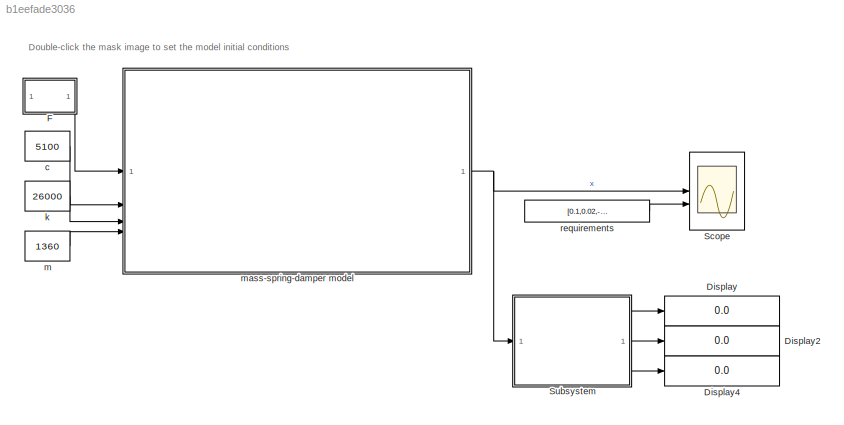
MODEL slx_b1eefade3036
KIND model
CONFIG AbsTol = auto
CONFIG EnableMultiTasking = off
CONFIG FixedStep = auto
CONFIG MaxStep = 1e-5
CONFIG MinStep = auto
CONFIG RelTol = 1e-6
CONFIG SampleTimeConstraint = Unconstrained
CONFIG SolverName = ode23t
CONFIG StartTime = 0.0
CONFIG StopTime = 10
BLOCK [Display] Display
  Decimation = 1
BLOCK [Display] Display2
  Decimation = 1
BLOCK [Display] Display4
  Decimation = 1
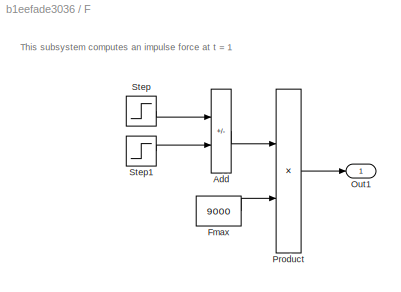
BLOCK [SubSystem] F
BLOCK [Sum] F/Add
  IconShape = rectangular
  Inputs = +-
BLOCK [Constant] F/Fmax
  Value = 9000
BLOCK [Outport] F/Out1
BLOCK [Product] F/Product
BLOCK [Step] F/Step
  SampleTime = 0
BLOCK [Step] F/Step1
  SampleTime = 0
  Time = 1.1
BLOCK [Scope] Scope
  Floating = off
  NumInputPorts = 2
  ScopeSpecificationString = Simulink.scopes.TimeScopeBlockCfg('CurrentConfiguration', extmgr.ConfigurationSet(extmgr.Configuration('Core','General UI',true,'FigureColor',[1 1 1]),extmgr.Configuration('Core','Source UI',true),extmgr.Configuration('Sources','WiredSimulink',true,'DataLoggingVariableName','ScopeData1'),extmgr.Configuration('Visuals','Time Domain',true,'SerializedDisplays',{struct('MinYLimReal','-0.125','MaxYLimR...<+2174ch>
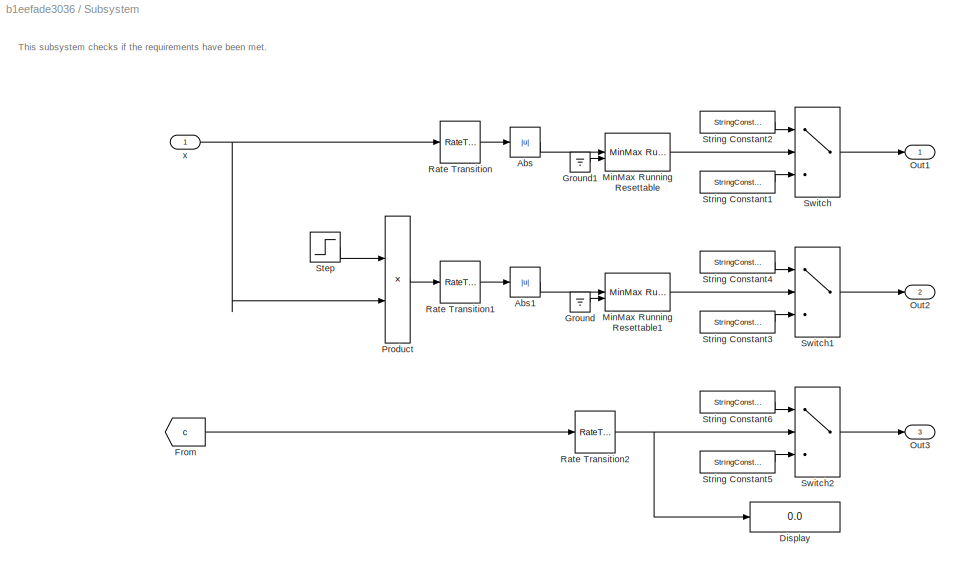
BLOCK [SubSystem] Subsystem
BLOCK [Abs] Subsystem/Abs
  SaturateOnIntegerOverflow = off
BLOCK [Abs] Subsystem/Abs1
  SaturateOnIntegerOverflow = off
BLOCK [Display] Subsystem/Display
  Decimation = 1
BLOCK [From] Subsystem/From
  GotoTag = c
  TagVisibility = global
BLOCK [Ground] Subsystem/Ground
BLOCK [Ground] Subsystem/Ground1
BLOCK [Reference] Subsystem/MinMax Running Resettable  REF=simulink/Math
Operations/MinMax
Running
Resettable
  SourceBlock = simulink/Math\nOperations/MinMax\nRunning\nResettable
  SourceType = MinMax Running Resettable
BLOCK [Reference] Subsystem/MinMax Running Resettable1  REF=simulink/Math
Operations/MinMax
Running
Resettable
  SourceBlock = simulink/Math\nOperations/MinMax\nRunning\nResettable
  SourceType = MinMax Running Resettable
BLOCK [Outport] Subsystem/Out1
BLOCK [Outport] Subsystem/Out2
  Port = 2
BLOCK [Outport] Subsystem/Out3
  Port = 3
BLOCK [Product] Subsystem/Product
BLOCK [RateTransition] Subsystem/Rate Transition
  OutPortSampleTime = 0.01
BLOCK [RateTransition] Subsystem/Rate Transition1
  OutPortSampleTime = 0.01
BLOCK [RateTransition] Subsystem/Rate Transition2
  OutPortSampleTime = 0.01
BLOCK [Step] Subsystem/Step
  SampleTime = 0
  Time = 2
BLOCK [StringConstant] Subsystem/String Constant1
  String = "Req. 1 met"
BLOCK [StringConstant] Subsystem/String Constant2
  String = "Req. 1 not met"
BLOCK [StringConstant] Subsystem/String Constant3
  String = "Req. 2 met"
BLOCK [StringConstant] Subsystem/String Constant4
  String = "Req. 2 not met"
BLOCK [StringConstant] Subsystem/String Constant5
  String = "Req. 3 met"
BLOCK [StringConstant] Subsystem/String Constant6
  String = "Req. 3 not met"
BLOCK [Switch] Subsystem/Switch
  Criteria = u2 > Threshold
  InputSameDT = off
  SaturateOnIntegerOverflow = off
  Threshold = 0.1
BLOCK [Switch] Subsystem/Switch1
  Criteria = u2 > Threshold
  InputSameDT = off
  SaturateOnIntegerOverflow = off
  Threshold = 0.02
BLOCK [Switch] Subsystem/Switch2
  Criteria = u2 > Threshold
  InputSameDT = off
  SaturateOnIntegerOverflow = off
  Threshold = 5200
BLOCK [Inport] Subsystem/x
BLOCK [Constant] c
  Value = 5100
BLOCK [Constant] k
  Value = 26000
BLOCK [Constant] m
  Value = 1360
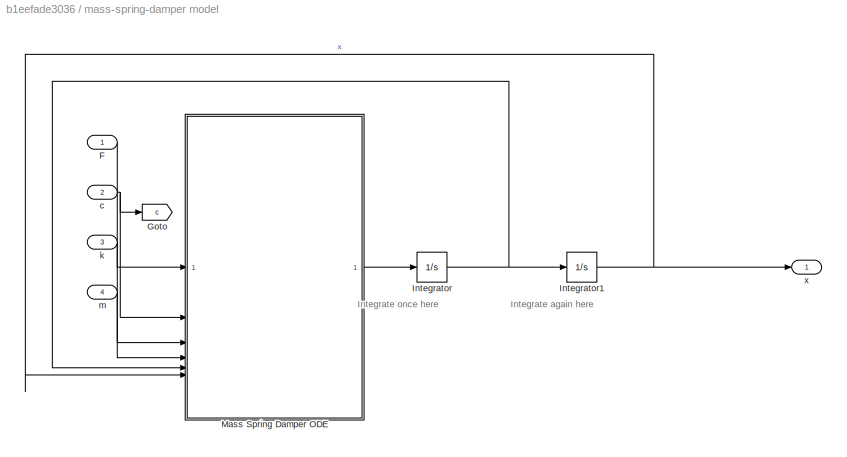
BLOCK [SubSystem] mass-spring-damper model
BLOCK [Inport] mass-spring-damper model/F
BLOCK [Goto] mass-spring-damper model/Goto
  GotoTag = c
  TagVisibility = global
BLOCK [Integrator] mass-spring-damper model/Integrator
  InitialCondition = x_dot0
BLOCK [Integrator] mass-spring-damper model/Integrator1
  InitialCondition = x0
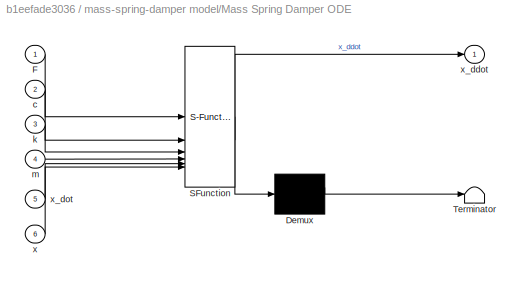
BLOCK [SubSystem] mass-spring-damper model/Mass Spring Damper ODE
  ErrorFcn = Stateflow.Translate.translate
  PermitHierarchicalResolution = ExplicitOnly
  SFBlockType = MATLAB Function
  TreatAsAtomicUnit = on
BLOCK [Demux] mass-spring-damper model/Mass Spring Damper ODE/ Demux 
  Outputs = 1
BLOCK [S-Function] mass-spring-damper model/Mass Spring Damper ODE/ SFunction 
  EnableBusSupport = on
  FunctionName = sf_sfun
  PortCounts = [6 2]
  SFcnIsStateOwnerBlock = off
  SFunctionDeploymentMode = off
  Tag = Stateflow S-Function 2
BLOCK [Terminator] mass-spring-damper model/Mass Spring Damper ODE/ Terminator 
BLOCK [Inport] mass-spring-damper model/Mass Spring Damper ODE/F
BLOCK [Inport] mass-spring-damper model/Mass Spring Damper ODE/c
  Port = 2
BLOCK [Inport] mass-spring-damper model/Mass Spring Damper ODE/k
  Port = 3
BLOCK [Inport] mass-spring-damper model/Mass Spring Damper ODE/m
  Port = 4
BLOCK [Inport] mass-spring-damper model/Mass Spring Damper ODE/x
  Port = 6
BLOCK [Outport] mass-spring-damper model/Mass Spring Damper ODE/x_ddot
BLOCK [Inport] mass-spring-damper model/Mass Spring Damper ODE/x_dot
  Port = 5
BLOCK [Inport] mass-spring-damper model/c
  Port = 2
BLOCK [Inport] mass-spring-damper model/k
  Port = 3
BLOCK [Inport] mass-spring-damper model/m
  Port = 4
BLOCK [Outport] mass-spring-damper model/x
BLOCK [Constant] requirements
  Value = [0.1,0.02,-0.02,-0.1]
ANNOTATION (root): Double-click the mask image to set the model initial conditions
ANNOTATION F: This subsystem computes an impulse force at t = 1
ANNOTATION Subsystem: This subsystem checks if the requirements have been met.
ANNOTATION mass-spring-damper model: Integrate again here
ANNOTATION mass-spring-damper model: Integrate once here
LINE F/Add:1 -> F/Product:1
LINE F/Fmax:1 -> F/Product:2
LINE F/Product:1 -> F/Out1:1
LINE F/Step1:1 -> F/Add:2
LINE F/Step:1 -> F/Add:1
LINE F:1 -> mass-spring-damper model:1
LINE Subsystem/Abs1:1 -> Subsystem/MinMax Running Resettable1:1
LINE Subsystem/Abs:1 -> Subsystem/MinMax Running Resettable:1
LINE Subsystem/From:1 -> Subsystem/Rate Transition2:1
LINE Subsystem/Ground1:1 -> Subsystem/MinMax Running Resettable:2
LINE Subsystem/Ground:1 -> Subsystem/MinMax Running Resettable1:2
LINE Subsystem/MinMax Running Resettable1:1 -> Subsystem/Switch1:2
LINE Subsystem/MinMax Running Resettable:1 -> Subsystem/Switch:2
LINE Subsystem/Product:1 -> Subsystem/Rate Transition1:1
LINE Subsystem/Rate Transition1:1 -> Subsystem/Abs1:1
NET Subsystem/Rate Transition2:1 -> Subsystem/Display:1, Subsystem/Switch2:2
LINE Subsystem/Rate Transition:1 -> Subsystem/Abs:1
LINE Subsystem/Step:1 -> Subsystem/Product:1
LINE Subsystem/String Constant1:1 -> Subsystem/Switch:3
LINE Subsystem/String Constant2:1 -> Subsystem/Switch:1
LINE Subsystem/String Constant3:1 -> Subsystem/Switch1:3
LINE Subsystem/String Constant4:1 -> Subsystem/Switch1:1
LINE Subsystem/String Constant5:1 -> Subsystem/Switch2:3
LINE Subsystem/String Constant6:1 -> Subsystem/Switch2:1
LINE Subsystem/Switch1:1 -> Subsystem/Out2:1
LINE Subsystem/Switch2:1 -> Subsystem/Out3:1
LINE Subsystem/Switch:1 -> Subsystem/Out1:1
NET Subsystem/x:1 -> Subsystem/Product:2, Subsystem/Rate Transition:1
LINE Subsystem:1 -> Display:1
LINE Subsystem:2 -> Display2:1
LINE Subsystem:3 -> Display4:1
LINE c:1 -> mass-spring-damper model:2
LINE k:1 -> mass-spring-damper model:3
LINE m:1 -> mass-spring-damper model:4
LINE mass-spring-damper model/F:1 -> mass-spring-damper model/Mass Spring Damper ODE:1
NET mass-spring-damper model/Integrator1:1 -> mass-spring-damper model/Mass Spring Damper ODE:6, mass-spring-damper model/x:1
NET mass-spring-damper model/Integrator:1 -> mass-spring-damper model/Integrator1:1, mass-spring-damper model/Mass Spring Damper ODE:5
LINE mass-spring-damper model/Mass Spring Damper ODE:1 -> mass-spring-damper model/Integrator:1
NET mass-spring-damper model/c:1 -> mass-spring-damper model/Goto:1, mass-spring-damper model/Mass Spring Damper ODE:2
LINE mass-spring-damper model/k:1 -> mass-spring-damper model/Mass Spring Damper ODE:3
LINE mass-spring-damper model/m:1 -> mass-spring-damper model/Mass Spring Damper ODE:4
NET mass-spring-damper model:1 -> Scope:1, Subsystem:1
LINE requirements:1 -> Scope:2
note: NET lines group one-source signal fan-out (src -> all destinations, sorted); 1:1 wires keep LINE
CHART mass-spring-damper model/Mass Spring Damper ODE states=1 transitions=1
  STATE_LABEL 'eML_blk_kernel()'
  STATE_LABEL 'SCRIPT:\nfunction x_ddot = fcn(F,c,k,m,x_dot,x)\n\n   % Write your expression for x_ddot here in terms of the inputs\n   x_ddot = -(-F+c.*x_dot+k.*x)./m;\nend\n\n'
CHART  states=0 transitions=0
